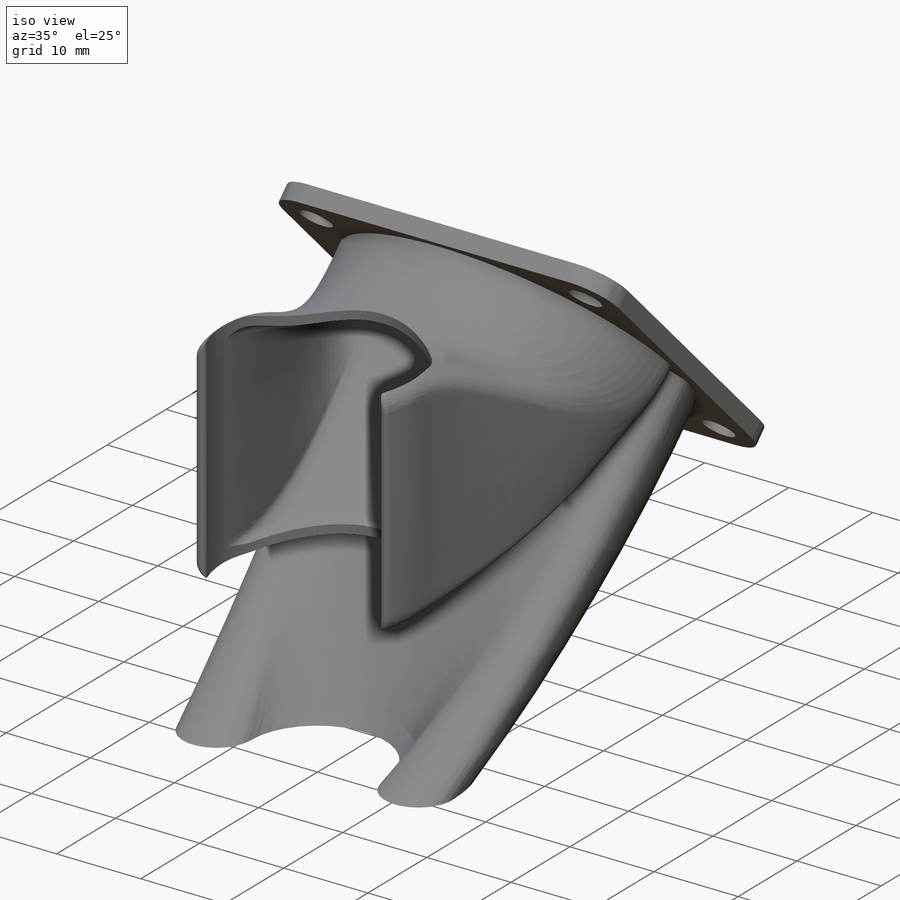
[diagram: iso view]
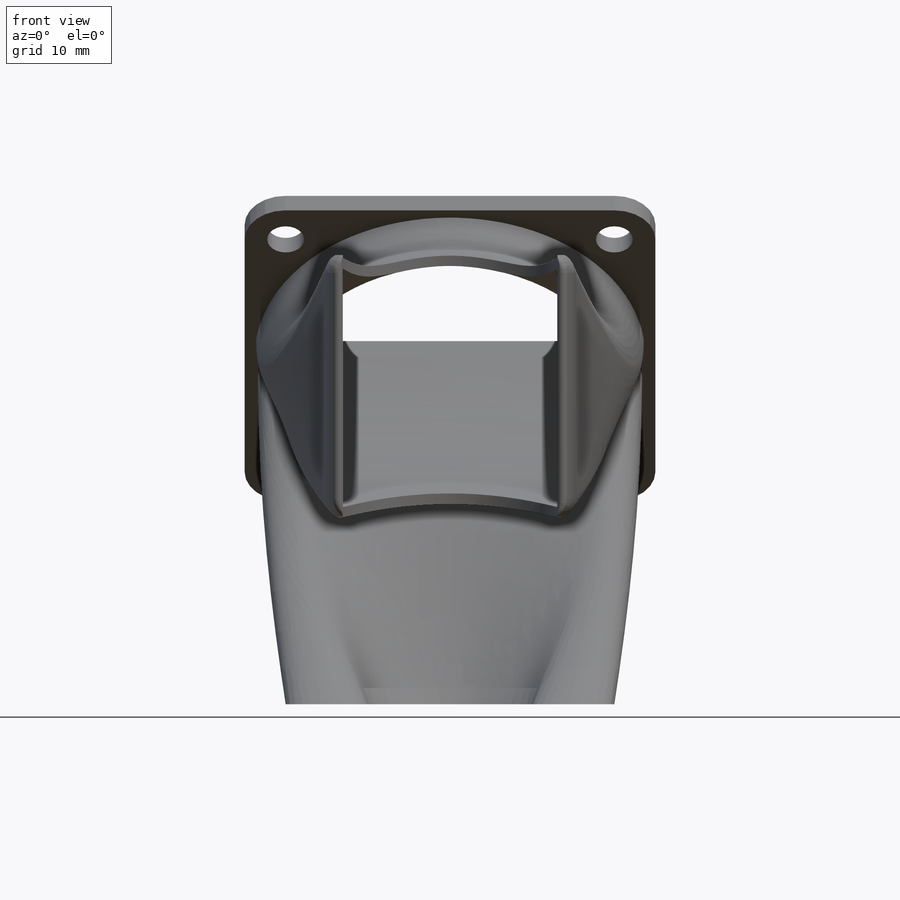
[diagram: front view]
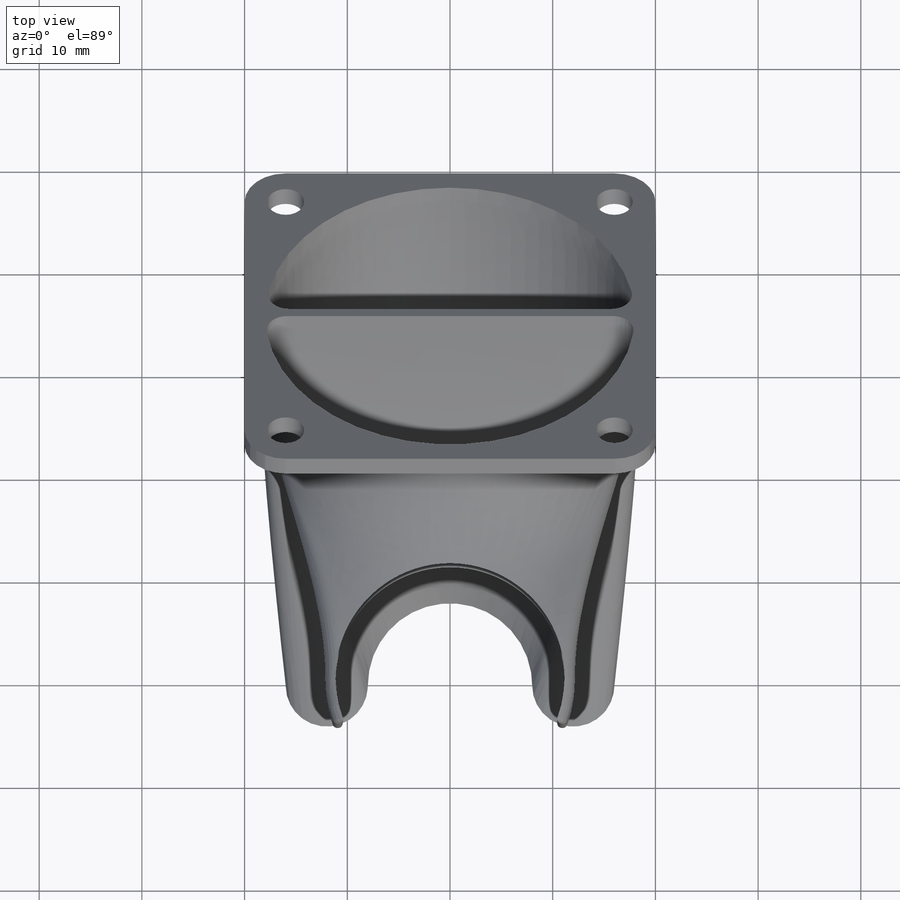
[diagram: top view]
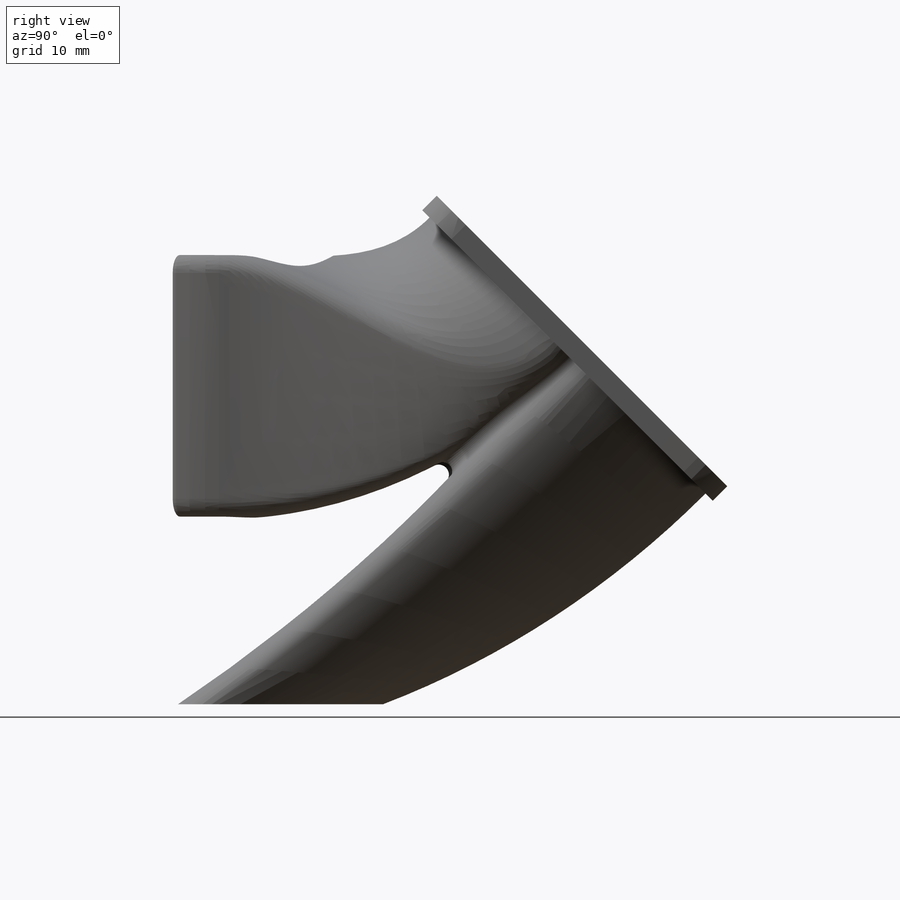
[diagram: right view]
SOLIDWORKS PART (.sldprt)
format: sldprt  version: not decoded by parser v0  size: 854,528 bytes
history: native  units: mm
features: sketch x13, cut_extrude x5, fillet x3, extrude x2, material x1 (+13 scaffold rows collapsed)
feature tree (37):
  scaffold x13  (default folders/planes/origin — collapsed)
  material  "Material <not specified>"
  sketch  "Sketch2"  dims[c1.D1=~192.576066mm c2.D1=45.0deg c2.D2=2.0mm c2.D3=40.0mm c2.D4=48.0mm]
  extrude  "Boss-Extrude1"  Depth=40mm
  sketch  "Sketch1"  dims[D4=1.0mm D1=19.0mm D2=24.0mm D3=22.3mm]
  sketch  "Sketch3"  dims[D1=36.0mm D3=2.0mm D2=20.0mm]
  sketch  "Sketch4"  dims[D1=1.0mm]
  cut_extrude  "Cut-Extrude1"  [1 undecoded]
  sketch  "Sketch3<2>"
  sketch  "Sketch8"  dims[D1=2.0mm]
  cut_extrude  "Cut-Extrude2"  [1 undecoded]
  sketch  "Sketch5"  dims[c1.D2=16.0mm c1.D3=8.0mm c1.D1=~13.040051mm c2.D1=180.0deg]
  sketch  "Sketch6"  dims[D1=38.0mm D3=3.0mm D2=19.0mm]
  sketch  "Sketch7"
  extrude  "Loft-Thin3"  Depth=1mm
  sketch  "Sketch15"  dims[c1.D4=1.0mm c1.D1=30.0mm c1.D2=20.0mm c1.D3=12.5mm c2.D1=180.0deg c2.D3=1.0mm c2.D4=1.0mm c2.D7=0.0mm]
  sketch  "Sketch10"  dims[c1.D1=22.3mm c1.D2=~0.605752mm c2.D2=135.0deg]
  cut_extrude  "Cut-Extrude8"  Depth=26mm
  fillet  "Fillet6"  Radius=1mm
  fillet  "Fillet7"  Radius=4mm
  fillet  "Fillet8"  Radius=0.5mm
  sketch  "Sketch11"  dims[D1=3.6mm D2=3.6mm D3=3.6mm D4=3.6mm]
  cut_extrude  "Cut-Extrude4"  Depth=2mm
  sketch  "Sketch14"  dims[D1=22.0mm D2=6.0mm]
  cut_extrude  "Cut-Extrude6"  Depth=10mm
decode coverage: 19 of 23 modeling features carry decoded parameters
note: ~ marks probable driven/reference dimensions
note: 2 parameter values undecoded
note: suppression state not decoded; provenance and decode notes live in map.json
